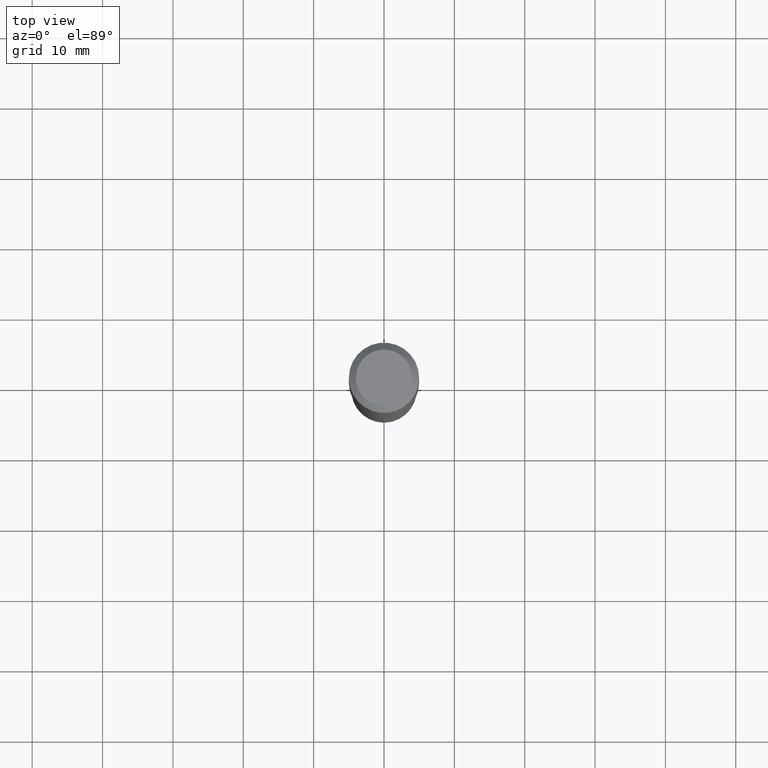
[diagram: clean part render]
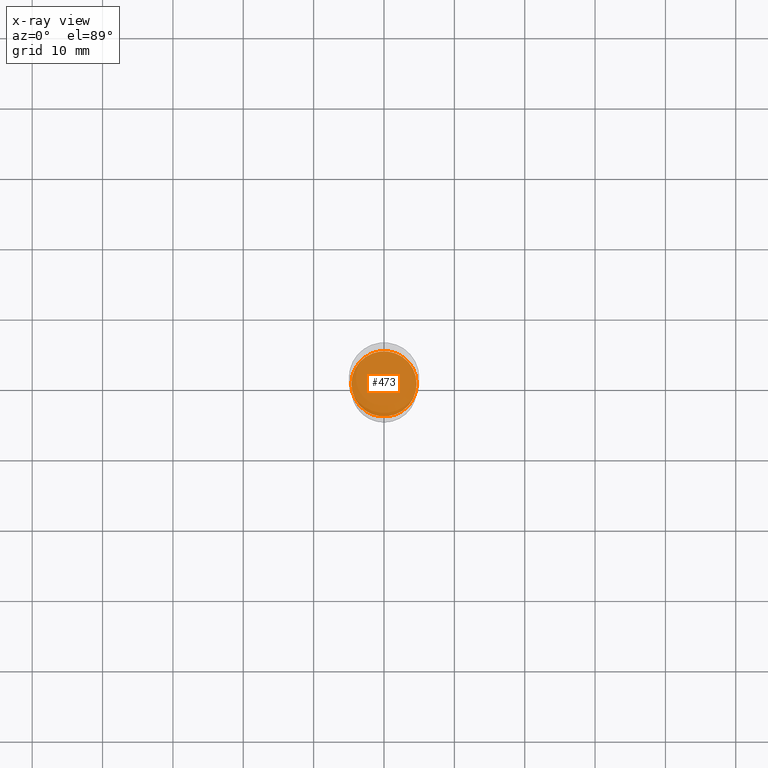
[diagram: x-ray — body ghosted, one internal face saturated and labeled with its STEP entity id]
A machine part, top view, then the same camera in x-ray: the body is ghosted and one INTERNAL B-rep face — a face not visible from any outside direction — is saturated and labeled: STEP entity #473.
In plain terms, the highlighted planar face has unit normal (-0, 0, 1).
Its self-contained STEP definition (entity closure, byte-faithful):
#20 = CARTESIAN_POINT ( 'NONE',  ( 0.1825499999999999623, -8.326135548739243343E-15, -2.019600000000000062 ) ) ;
#26 = FACE_OUTER_BOUND ( 'NONE', #124, .T. ) ;
#44 = EDGE_CURVE ( 'NONE', #253, #404, #294, .T. ) ;
#124 = EDGE_LOOP ( 'NONE', ( #204, #463 ) ) ;
#134 = CARTESIAN_POINT ( 'NONE',  ( 4.938868800971501707E-29, -7.051395711927616472E-15, -2.019600000000000062 ) ) ;
#174 = CARTESIAN_POINT ( 'NONE',  ( 4.938868800971501707E-29, -7.051395711927616472E-15, -2.019600000000000062 ) ) ;
#176 = DIRECTION ( 'NONE',  ( -2.445468806185136597E-29, 3.491481338843145583E-15, 1.000000000000000000 ) ) ;
#202 = AXIS2_PLACEMENT_3D ( 'NONE', #134, #176, #288 ) ;
#204 = ORIENTED_EDGE ( 'NONE', *, *, #460, .F. ) ;
#253 = VERTEX_POINT ( 'NONE', #269 ) ;
#254 = AXIS2_PLACEMENT_3D ( 'NONE', #319, #429, #486 ) ;
#269 = CARTESIAN_POINT ( 'NONE',  ( -0.1825499999999999623, -5.751650720623443241E-15, -2.019600000000000062 ) ) ;
#288 = DIRECTION ( 'NONE',  ( 1.000000000000000000, -6.982962677686264344E-15, 0.000000000000000000 ) ) ;
#294 = CIRCLE ( 'NONE', #202, 0.1825499999999999623 ) ;
#296 = DIRECTION ( 'NONE',  ( 1.000000000000000000, -6.982962677686265922E-15, 4.876176775795935793E-29 ) ) ;
#319 = CARTESIAN_POINT ( 'NONE',  ( 4.938868800971501707E-29, -7.051395711927616472E-15, -2.019600000000000062 ) ) ;
#330 = DIRECTION ( 'NONE',  ( -2.438088387897960049E-29, 3.491481338843145188E-15, 1.000000000000000000 ) ) ;
#404 = VERTEX_POINT ( 'NONE', #20 ) ;
#407 = PLANE ( 'NONE',  #431 ) ;
#429 = DIRECTION ( 'NONE',  ( -2.445468806185136597E-29, 3.491481338843145583E-15, 1.000000000000000000 ) ) ;
#431 = AXIS2_PLACEMENT_3D ( 'NONE', #174, #330, #296 ) ;
#460 = EDGE_CURVE ( 'NONE', #404, #253, #481, .T. ) ;
#463 = ORIENTED_EDGE ( 'NONE', *, *, #44, .F. ) ;
#473 = ADVANCED_FACE ( 'NONE', ( #26 ), #407, .F. ) ;
#481 = CIRCLE ( 'NONE', #254, 0.1825499999999999623 ) ;
#486 = DIRECTION ( 'NONE',  ( 1.000000000000000000, -6.982962677686264344E-15, 0.000000000000000000 ) ) ;